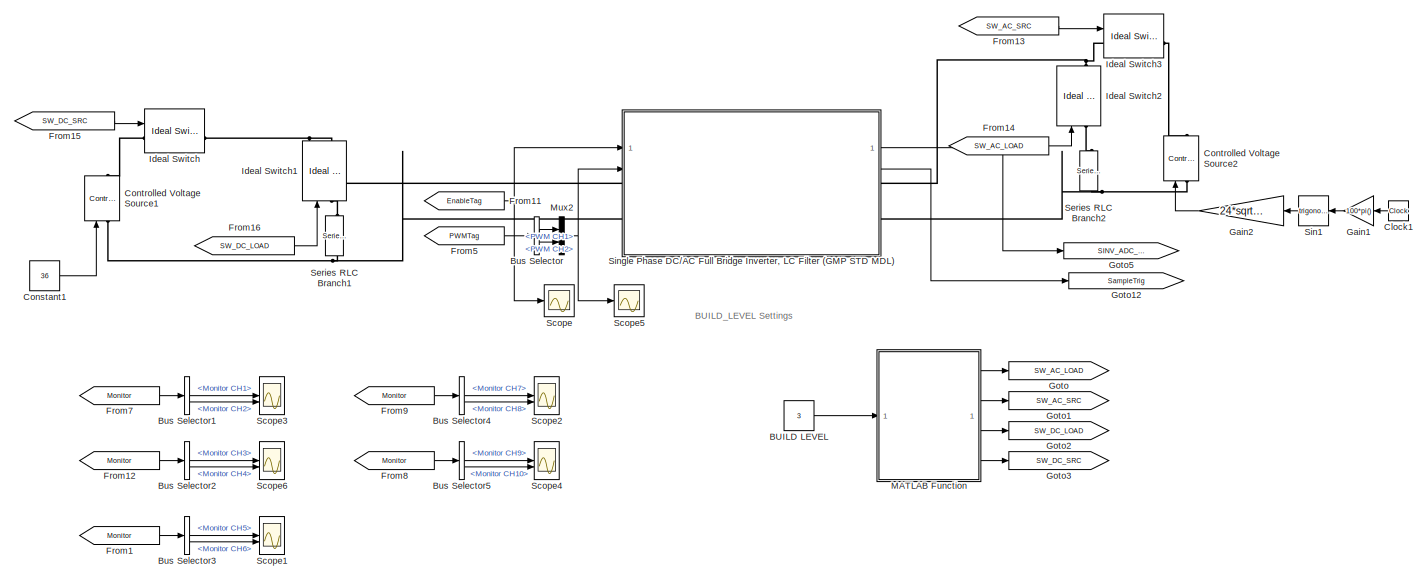
[diagram: root canvas - part 1/2, most of the canvas]
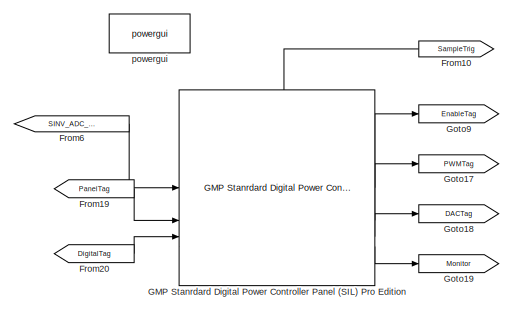
[diagram: root canvas - part 2/2, middle left region]
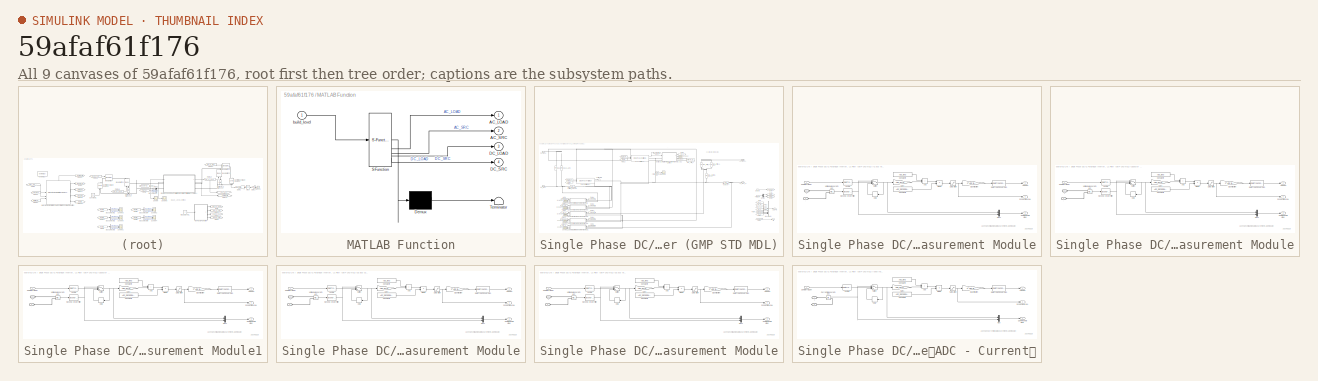
[diagram: thumbnail index - all 9 canvases of the model, root first then tree order]
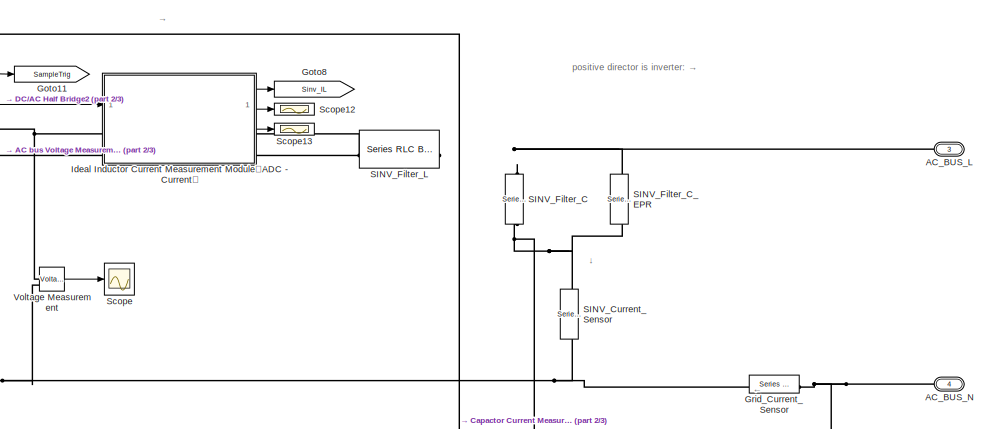
[diagram: Single Phase DC/AC Full Bridge Inverter, LC Filter (GMP STD MDL) - part 1/3, top right region]
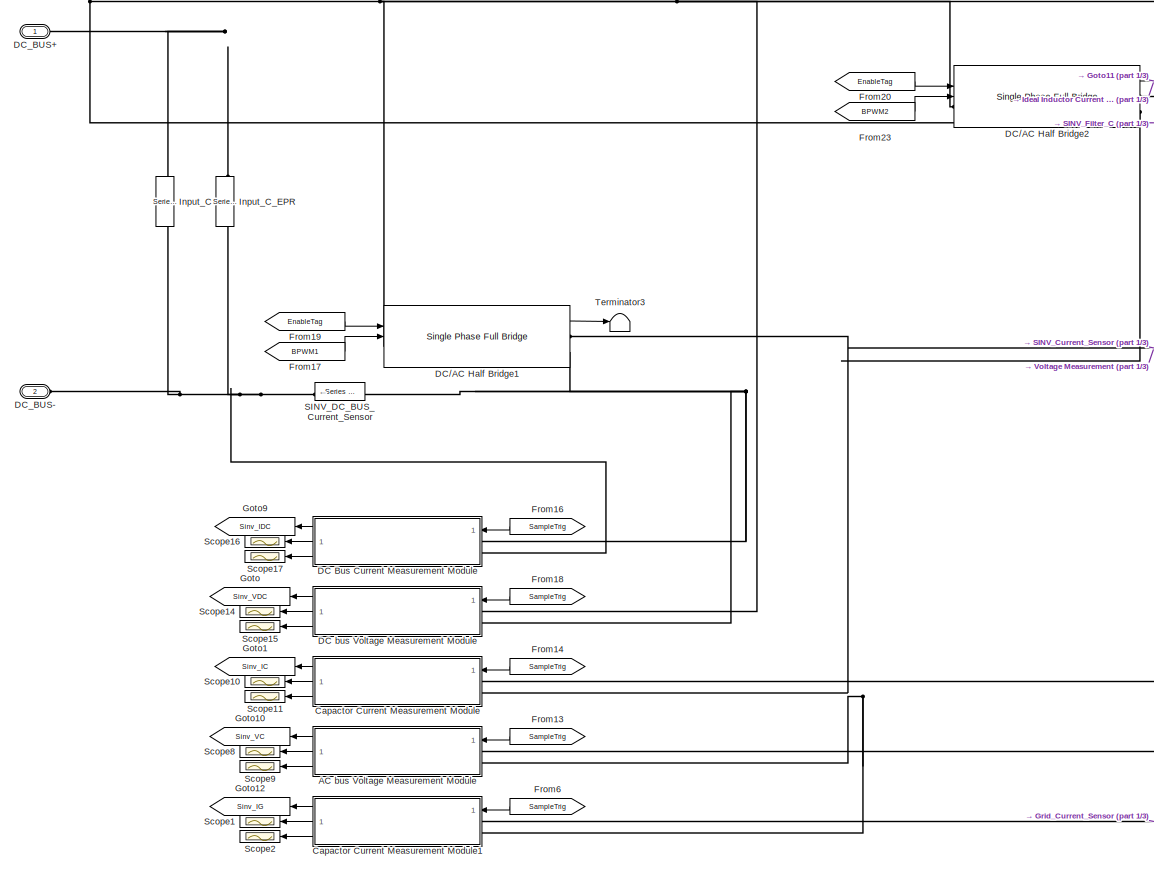
[diagram: Single Phase DC/AC Full Bridge Inverter, LC Filter (GMP STD MDL) - part 2/3, left side, full height]
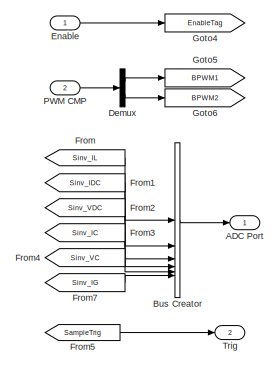
[diagram: Single Phase DC/AC Full Bridge Inverter, LC Filter (GMP STD MDL) - part 3/3, bottom right region]
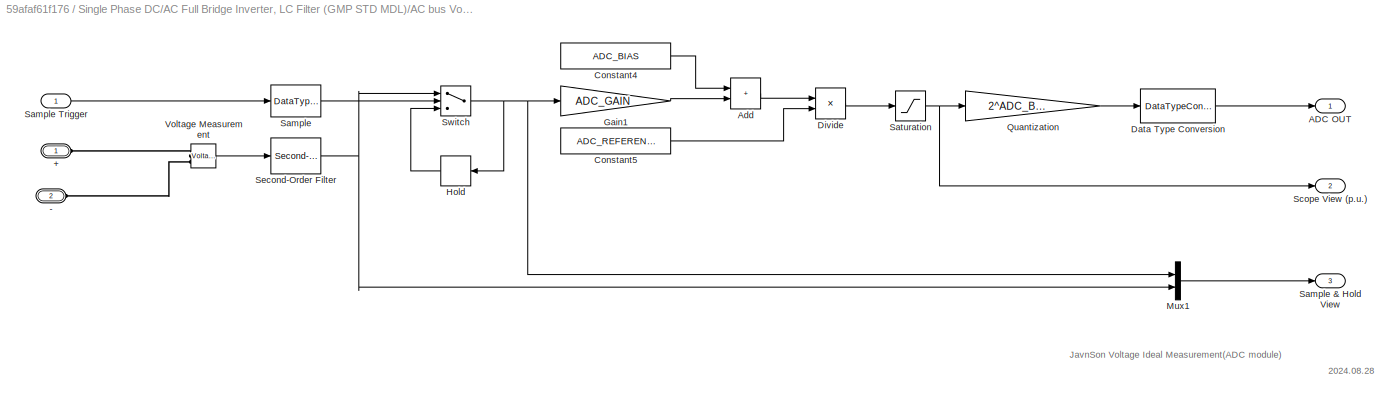
MODEL slx_59afaf61f176
KIND model
CONFIG AbsTol = auto
CONFIG EnableMultiTasking = off
CONFIG FixedStep = auto
CONFIG MaxStep = auto
CONFIG MinStep = auto
CONFIG RelTol = 1e-3
CONFIG SampleTimeConstraint = Unconstrained
CONFIG SolverName = VariableStepAuto
CONFIG StartTime = 0.0
CONFIG StopTime = 6
BLOCK [Constant] BUILD LEVEL
  Value = 3
BLOCK [BusSelector] Bus Selector
  OutputSignals = PWM CH1,PWM CH2
BLOCK [BusSelector] Bus Selector1
  OutputSignals = Monitor CH1,Monitor CH2
BLOCK [BusSelector] Bus Selector2
  OutputSignals = Monitor CH3,Monitor CH4
BLOCK [BusSelector] Bus Selector3
  OutputSignals = Monitor CH5,Monitor CH6
BLOCK [BusSelector] Bus Selector4
  OutputSignals = Monitor CH7,Monitor CH8
BLOCK [BusSelector] Bus Selector5
  OutputSignals = Monitor CH9,Monitor CH10
BLOCK [Clock] Clock1
  NameLocation = top
BLOCK [Constant] Constant1
  Value = 36
BLOCK [Reference] Controlled Voltage Source1  REF=spsControlledVoltageSourceLib/Controlled Voltage Source
  LibrarySourceBlock = sps_lib/Sources/Controlled Voltage Source
  SourceBlock = spsControlledVoltageSourceLib/Controlled Voltage Source
  SourceType = Controlled Voltage Source
BLOCK [Reference] Controlled Voltage Source2  REF=spsControlledVoltageSourceLib/Controlled Voltage Source
  LibrarySourceBlock = sps_lib/Sources/Controlled Voltage Source
  SourceBlock = spsControlledVoltageSourceLib/Controlled Voltage Source
  SourceType = Controlled Voltage Source
BLOCK [From] From1
  GotoTag = Monitor
BLOCK [From] From10
  GotoTag = SampleTrig
BLOCK [From] From11
  GotoTag = EnableTag
BLOCK [From] From12
  GotoTag = Monitor
BLOCK [From] From13
  GotoTag = SW_AC_SRC
BLOCK [From] From14
  GotoTag = SW_AC_LOAD
BLOCK [From] From15
  GotoTag = SW_DC_SRC
BLOCK [From] From16
  GotoTag = SW_DC_LOAD
BLOCK [From] From19
  GotoTag = PanelTag
BLOCK [From] From20
  GotoTag = DigitalTag
BLOCK [From] From5
  GotoTag = PWMTag
BLOCK [From] From6
  GotoTag = SINV_ADC_PORT
BLOCK [From] From7
  GotoTag = Monitor
BLOCK [From] From8
  GotoTag = Monitor
BLOCK [From] From9
  GotoTag = Monitor
BLOCK [Reference] GMP Stanrdard Digital Power Controller Panel (SIL) Pro Edition  REF=gmp_sil_core_pack/GMP Stanrdard Digital Power Controller Panel (SIL) Pro Edition
  SourceBlock = gmp_sil_core_pack/GMP Stanrdard Digital Power Controller Panel (SIL) Pro Edition
  SourceProductName = GMP SIL Core Utilities
  SourceType = GMP SIL Core for single Motor Controller (full edition)
BLOCK [Gain] Gain1
  Gain = 100*pi()
  NameLocation = top
BLOCK [Gain] Gain2
  Gain = 24*sqrt(2)
  NameLocation = top
BLOCK [Goto] Goto
  GotoTag = SW_AC_LOAD
BLOCK [Goto] Goto1
  GotoTag = SW_AC_SRC
BLOCK [Goto] Goto12
  GotoTag = SampleTrig
  NameLocation = top
BLOCK [Goto] Goto17
  GotoTag = PWMTag
  NameLocation = top
BLOCK [Goto] Goto18
  GotoTag = DACTag
  NameLocation = top
BLOCK [Goto] Goto19
  GotoTag = Monitor
  NameLocation = top
BLOCK [Goto] Goto2
  GotoTag = SW_DC_LOAD
BLOCK [Goto] Goto3
  GotoTag = SW_DC_SRC
BLOCK [Goto] Goto5
  GotoTag = SINV_ADC_PORT
BLOCK [Goto] Goto9
  GotoTag = EnableTag
  NameLocation = top
BLOCK [Reference] Ideal Switch  REF=spsIdealSwitchLib/Ideal Switch
  LibrarySourceBlock = sps_lib/Power Electronics/Ideal Switch
  SourceBlock = spsIdealSwitchLib/Ideal Switch
  SourceType = Ideal Switch
BLOCK [Reference] Ideal Switch1  REF=spsIdealSwitchLib/Ideal Switch
  LibrarySourceBlock = sps_lib/Power Electronics/Ideal Switch
  NameLocation = right
  SourceBlock = spsIdealSwitchLib/Ideal Switch
  SourceType = Ideal Switch
BLOCK [Reference] Ideal Switch2  REF=spsIdealSwitchLib/Ideal Switch
  LibrarySourceBlock = sps_lib/Power Electronics/Ideal Switch
  NameLocation = right
  SourceBlock = spsIdealSwitchLib/Ideal Switch
  SourceType = Ideal Switch
BLOCK [Reference] Ideal Switch3  REF=spsIdealSwitchLib/Ideal Switch
  LibrarySourceBlock = sps_lib/Power Electronics/Ideal Switch
  SourceBlock = spsIdealSwitchLib/Ideal Switch
  SourceType = Ideal Switch
BLOCK [SubSystem] MATLAB Function
  ErrorFcn = Stateflow.Translate.translate
  PermitHierarchicalResolution = ExplicitOnly
  SFBlockType = MATLAB Function
  TreatAsAtomicUnit = on
BLOCK [Demux] MATLAB Function/ Demux 
  Outputs = 1
BLOCK [S-Function] MATLAB Function/ SFunction 
  EnableBusSupport = off
  FunctionName = sf_sfun
  PortCounts = [1 5]
  SFcnIsStateOwnerBlock = off
  SFunctionDeploymentMode = off
  Tag = Stateflow S-Function 2
BLOCK [Terminator] MATLAB Function/ Terminator 
BLOCK [Outport] MATLAB Function/AC_LOAD
BLOCK [Outport] MATLAB Function/AC_SRC
  Port = 2
BLOCK [Outport] MATLAB Function/DC_LOAD
  Port = 3
BLOCK [Outport] MATLAB Function/DC_SRC
  Port = 4
BLOCK [Inport] MATLAB Function/build_level
BLOCK [Mux] Mux2
  DisplayOption = bar
  Inputs = 2
BLOCK [Scope] Scope
  Floating = off
  NumInputPorts = 1
  ScopeSpecificationString = Simulink.scopes.TimeScopeBlockCfg('CurrentConfiguration', extmgr.ConfigurationSet(extmgr.Configuration('Core','General UI',true),extmgr.Configuration('Core','Source UI',true),extmgr.Configuration('Sources','WiredSimulink',true,'DataLoggingVariableName','ScopeData3'),extmgr.Configuration('Visuals','Time Domain',true),extmgr.Configuration('Tools','Plot Navigation',true),extmgr.Configuration('Tools',...<+40ch>
BLOCK [Scope] Scope1
  Floating = off
  NumInputPorts = 2
  ScopeSpecificationString = Simulink.scopes.TimeScopeBlockCfg('CurrentConfiguration', extmgr.ConfigurationSet(extmgr.Configuration('Core','General UI',true),extmgr.Configuration('Core','Source UI',true),extmgr.Configuration('Sources','WiredSimulink',true,'DataLoggingVariableName','ScopeData1'),extmgr.Configuration('Visuals','Time Domain',true,'SerializedDisplays',{struct('MinYLimReal','-0.26132','MaxYLimReal','0.26039','YLab...<+1550ch>
BLOCK [Scope] Scope2
  Floating = off
  NumInputPorts = 2
  ScopeSpecificationString = Simulink.scopes.TimeScopeBlockCfg('CurrentConfiguration', extmgr.ConfigurationSet(extmgr.Configuration('Core','General UI',true),extmgr.Configuration('Core','Source UI',true),extmgr.Configuration('Sources','WiredSimulink',true,'DataLoggingVariableName','ScopeData1'),extmgr.Configuration('Visuals','Time Domain',true,'SerializedDisplays',{struct('MinYLimReal','-0.1','MaxYLimReal','0.9','YLabelReal',...<+1526ch>
BLOCK [Scope] Scope3
  Floating = off
  NumInputPorts = 2
  ScopeSpecificationString = Simulink.scopes.TimeScopeBlockCfg('CurrentConfiguration', extmgr.ConfigurationSet(extmgr.Configuration('Core','General UI',true),extmgr.Configuration('Core','Source UI',true),extmgr.Configuration('Sources','WiredSimulink',true,'DataLoggingVariableName','ScopeData1'),extmgr.Configuration('Visuals','Time Domain',true,'SerializedDisplays',{struct('MinYLimReal','-0.12505','MaxYLimReal','0.12541','YLab...<+1601ch>
BLOCK [Scope] Scope4
  Floating = off
  NumInputPorts = 2
  ScopeSpecificationString = Simulink.scopes.TimeScopeBlockCfg('CurrentConfiguration', extmgr.ConfigurationSet(extmgr.Configuration('Core','General UI',true),extmgr.Configuration('Core','Source UI',true),extmgr.Configuration('Sources','WiredSimulink',true,'DataLoggingVariableName','ScopeData2'),extmgr.Configuration('Visuals','Time Domain',true,'SerializedDisplays',{struct('MinYLimReal','-0.125','MaxYLimReal','1.125','YLabelRe...<+1562ch>
BLOCK [Scope] Scope5
  Floating = off
  NumInputPorts = 1
  ScopeSpecificationString = Simulink.scopes.TimeScopeBlockCfg('CurrentConfiguration', extmgr.ConfigurationSet(extmgr.Configuration('Core','General UI',true),extmgr.Configuration('Core','Source UI',true),extmgr.Configuration('Sources','WiredSimulink',true,'DataLoggingVariableName','ScopeData13'),extmgr.Configuration('Visuals','Time Domain',true,'SerializedDisplays',{struct('MinYLimReal','1810.3086','MaxYLimReal','2346.72197',...<+1587ch>
BLOCK [Scope] Scope6
  Floating = off
  NumInputPorts = 2
  ScopeSpecificationString = Simulink.scopes.TimeScopeBlockCfg('CurrentConfiguration', extmgr.ConfigurationSet(extmgr.Configuration('Core','General UI',true),extmgr.Configuration('Core','Source UI',true),extmgr.Configuration('Sources','WiredSimulink',true,'DataLoggingVariableName','ScopeData2'),extmgr.Configuration('Visuals','Time Domain',true,'SerializedDisplays',{struct('MinYLimReal','-0.00881','MaxYLimReal','0.07588','YLab...<+2273ch>
BLOCK [Reference] Series RLC Branch1  REF=spsSeriesRLCBranchLib/Series RLC Branch
  LibrarySourceBlock = sps_lib/Passives/Series RLC Branch
  NameLocation = left
  SourceBlock = spsSeriesRLCBranchLib/Series RLC Branch
  SourceType = Series RLC Branch
BLOCK [Reference] Series RLC Branch2  REF=spsSeriesRLCBranchLib/Series RLC Branch
  LibrarySourceBlock = sps_lib/Passives/Series RLC Branch
  NameLocation = left
  SourceBlock = spsSeriesRLCBranchLib/Series RLC Branch
  SourceType = Series RLC Branch
BLOCK [Trigonometry] Sin1
  NameLocation = top
BLOCK [SubSystem] Single Phase DC//AC Full Bridge Inverter, LC Filter (GMP STD MDL)
  PortSchema = {"entries":[{"content":{"sides":[{"content":{"connectorIds":["LConn1","LConn2","In1","In2"]},"type":"ConnectorPlacement.EquallySpacedRectSide","uuid":"0e3e6e75-5e1a-455b-8a22-c69d0a4261ca"},{"content":{"connectorIds":["RConn1","RConn2","Out1","Out2"],"side":"RIGHT"},"type":"ConnectorPlacement.EquallySpacedRectSide","uuid":"20326781-9238-4fea-80fd-ba96906d5d3f"},{"content":{"side":"TOP"},"type":"Co...<+271ch>
BLOCK [SubSystem] Single Phase DC//AC Full Bridge Inverter, LC Filter (GMP STD MDL)/AC bus Voltage Measurement Module
  AncestorBlock = peripheral_utilities/Ideal Voltage Measurement with filter Module(ADC - Voltage)
BLOCK [PMIOPort] Single Phase DC//AC Full Bridge Inverter, LC Filter (GMP STD MDL)/AC bus Voltage Measurement Module/+
  Side = Left
BLOCK [PMIOPort] Single Phase DC//AC Full Bridge Inverter, LC Filter (GMP STD MDL)/AC bus Voltage Measurement Module/-
  Port = 2
  Side = Left
BLOCK [Outport] Single Phase DC//AC Full Bridge Inverter, LC Filter (GMP STD MDL)/AC bus Voltage Measurement Module/ADC OUT
BLOCK [Sum] Single Phase DC//AC Full Bridge Inverter, LC Filter (GMP STD MDL)/AC bus Voltage Measurement Module/Add
  IconShape = rectangular
BLOCK [Constant] Single Phase DC//AC Full Bridge Inverter, LC Filter (GMP STD MDL)/AC bus Voltage Measurement Module/Constant4
  Value = ADC_BIAS
BLOCK [Constant] Single Phase DC//AC Full Bridge Inverter, LC Filter (GMP STD MDL)/AC bus Voltage Measurement Module/Constant5
  Value = ADC_REFERENCE
BLOCK [DataTypeConversion] Single Phase DC//AC Full Bridge Inverter, LC Filter (GMP STD MDL)/AC bus Voltage Measurement Module/Data Type Conversion
  ConvertRealWorld = Stored Integer (SI)
  OutDataTypeStr = uint32
  RndMeth = Floor
  SaturateOnIntegerOverflow = off
BLOCK [Product] Single Phase DC//AC Full Bridge Inverter, LC Filter (GMP STD MDL)/AC bus Voltage Measurement Module/Divide
  Inputs = */
BLOCK [Gain] Single Phase DC//AC Full Bridge Inverter, LC Filter (GMP STD MDL)/AC bus Voltage Measurement Module/Gain1
  Gain = ADC_GAIN
BLOCK [Memory] Single Phase DC//AC Full Bridge Inverter, LC Filter (GMP STD MDL)/AC bus Voltage Measurement Module/Hold
  InitialCondition = ADC_INIT
  LinearizeAsDelay = on
  NameLocation = top
BLOCK [Mux] Single Phase DC//AC Full Bridge Inverter, LC Filter (GMP STD MDL)/AC bus Voltage Measurement Module/Mux1
  DisplayOption = bar
  Inputs = 2
BLOCK [Gain] Single Phase DC//AC Full Bridge Inverter, LC Filter (GMP STD MDL)/AC bus Voltage Measurement Module/Quantization
  Gain = 2^ADC_BIT
BLOCK [DataTypeConversion] Single Phase DC//AC Full Bridge Inverter, LC Filter (GMP STD MDL)/AC bus Voltage Measurement Module/Sample
  OutDataTypeStr = boolean
  RndMeth = Floor
  SaturateOnIntegerOverflow = off
BLOCK [Outport] Single Phase DC//AC Full Bridge Inverter, LC Filter (GMP STD MDL)/AC bus Voltage Measurement Module/Sample & Hold View
  Port = 3
BLOCK [Inport] Single Phase DC//AC Full Bridge Inverter, LC Filter (GMP STD MDL)/AC bus Voltage Measurement Module/Sample Trigger
BLOCK [Saturate] Single Phase DC//AC Full Bridge Inverter, LC Filter (GMP STD MDL)/AC bus Voltage Measurement Module/Saturation
  LowerLimit = 0
  UpperLimit = 1
BLOCK [Outport] Single Phase DC//AC Full Bridge Inverter, LC Filter (GMP STD MDL)/AC bus Voltage Measurement Module/Scope View (p.u.)
  Port = 2
BLOCK [Reference] Single Phase DC//AC Full Bridge Inverter, LC Filter (GMP STD MDL)/AC bus Voltage Measurement Module/Second-Order Filter  REF=spsSecondOrderFilterLib/Second-Order
Filter
  SourceBlock = spsSecondOrderFilterLib/Second-Order\nFilter
  SourceType = Second-Order Filter
BLOCK [Switch] Single Phase DC//AC Full Bridge Inverter, LC Filter (GMP STD MDL)/AC bus Voltage Measurement Module/Switch
  Threshold = 0.5
BLOCK [Reference] Single Phase DC//AC Full Bridge Inverter, LC Filter (GMP STD MDL)/AC bus Voltage Measurement Module/Voltage Measurement  REF=spsVoltageMeasurementLib/Voltage Measurement
  SourceBlock = spsVoltageMeasurementLib/Voltage Measurement
  SourceType = Voltage Measurement
  UserDataPersistent = on
BLOCK [PMIOPort] Single Phase DC//AC Full Bridge Inverter, LC Filter (GMP STD MDL)/AC_BUS_L
  NameLocation = top
  Port = 3
  Side = Right
BLOCK [PMIOPort] Single Phase DC//AC Full Bridge Inverter, LC Filter (GMP STD MDL)/AC_BUS_N
  NameLocation = top
  Port = 4
  Side = Right
BLOCK [Outport] Single Phase DC//AC Full Bridge Inverter, LC Filter (GMP STD MDL)/ADC Port
BLOCK [BusCreator] Single Phase DC//AC Full Bridge Inverter, LC Filter (GMP STD MDL)/Bus Creator
  DisplayOption = bar
  InheritFromInputs = on
  Inputs = 6
BLOCK [SubSystem] Single Phase DC//AC Full Bridge Inverter, LC Filter (GMP STD MDL)/Capactor Current Measurement Module
  AncestorBlock = peripheral_utilities/Ideal Voltage Measurement with filter Module(ADC - Voltage)
BLOCK [PMIOPort] Single Phase DC//AC Full Bridge Inverter, LC Filter (GMP STD MDL)/Capactor Current Measurement Module/+
  Side = Left
BLOCK [PMIOPort] Single Phase DC//AC Full Bridge Inverter, LC Filter (GMP STD MDL)/Capactor Current Measurement Module/-
  Port = 2
  Side = Left
BLOCK [Outport] Single Phase DC//AC Full Bridge Inverter, LC Filter (GMP STD MDL)/Capactor Current Measurement Module/ADC OUT
BLOCK [Sum] Single Phase DC//AC Full Bridge Inverter, LC Filter (GMP STD MDL)/Capactor Current Measurement Module/Add
  IconShape = rectangular
BLOCK [Constant] Single Phase DC//AC Full Bridge Inverter, LC Filter (GMP STD MDL)/Capactor Current Measurement Module/Constant4
  Value = ADC_BIAS
BLOCK [Constant] Single Phase DC//AC Full Bridge Inverter, LC Filter (GMP STD MDL)/Capactor Current Measurement Module/Constant5
  Value = ADC_REFERENCE
BLOCK [DataTypeConversion] Single Phase DC//AC Full Bridge Inverter, LC Filter (GMP STD MDL)/Capactor Current Measurement Module/Data Type Conversion
  ConvertRealWorld = Stored Integer (SI)
  OutDataTypeStr = uint32
  RndMeth = Floor
  SaturateOnIntegerOverflow = off
BLOCK [Product] Single Phase DC//AC Full Bridge Inverter, LC Filter (GMP STD MDL)/Capactor Current Measurement Module/Divide
  Inputs = */
BLOCK [Gain] Single Phase DC//AC Full Bridge Inverter, LC Filter (GMP STD MDL)/Capactor Current Measurement Module/Gain1
  Gain = ADC_GAIN
BLOCK [Memory] Single Phase DC//AC Full Bridge Inverter, LC Filter (GMP STD MDL)/Capactor Current Measurement Module/Hold
  InitialCondition = ADC_INIT
  LinearizeAsDelay = on
  NameLocation = top
BLOCK [Mux] Single Phase DC//AC Full Bridge Inverter, LC Filter (GMP STD MDL)/Capactor Current Measurement Module/Mux1
  DisplayOption = bar
  Inputs = 2
BLOCK [Gain] Single Phase DC//AC Full Bridge Inverter, LC Filter (GMP STD MDL)/Capactor Current Measurement Module/Quantization
  Gain = 2^ADC_BIT
BLOCK [DataTypeConversion] Single Phase DC//AC Full Bridge Inverter, LC Filter (GMP STD MDL)/Capactor Current Measurement Module/Sample
  OutDataTypeStr = boolean
  RndMeth = Floor
  SaturateOnIntegerOverflow = off
BLOCK [Outport] Single Phase DC//AC Full Bridge Inverter, LC Filter (GMP STD MDL)/Capactor Current Measurement Module/Sample & Hold View
  Port = 3
BLOCK [Inport] Single Phase DC//AC Full Bridge Inverter, LC Filter (GMP STD MDL)/Capactor Current Measurement Module/Sample Trigger
BLOCK [Saturate] Single Phase DC//AC Full Bridge Inverter, LC Filter (GMP STD MDL)/Capactor Current Measurement Module/Saturation
  LowerLimit = 0
  UpperLimit = 1
BLOCK [Outport] Single Phase DC//AC Full Bridge Inverter, LC Filter (GMP STD MDL)/Capactor Current Measurement Module/Scope View (p.u.)
  Port = 2
BLOCK [Reference] Single Phase DC//AC Full Bridge Inverter, LC Filter (GMP STD MDL)/Capactor Current Measurement Module/Second-Order Filter  REF=spsSecondOrderFilterLib/Second-Order
Filter
  SourceBlock = spsSecondOrderFilterLib/Second-Order\nFilter
  SourceType = Second-Order Filter
BLOCK [Switch] Single Phase DC//AC Full Bridge Inverter, LC Filter (GMP STD MDL)/Capactor Current Measurement Module/Switch
  Threshold = 0.5
BLOCK [Reference] Single Phase DC//AC Full Bridge Inverter, LC Filter (GMP STD MDL)/Capactor Current Measurement Module/Voltage Measurement  REF=spsVoltageMeasurementLib/Voltage Measurement
  SourceBlock = spsVoltageMeasurementLib/Voltage Measurement
  SourceType = Voltage Measurement
  UserDataPersistent = on
BLOCK [SubSystem] Single Phase DC//AC Full Bridge Inverter, LC Filter (GMP STD MDL)/Capactor Current Measurement Module1
  AncestorBlock = peripheral_utilities/Ideal Voltage Measurement with filter Module(ADC - Voltage)
BLOCK [PMIOPort] Single Phase DC//AC Full Bridge Inverter, LC Filter (GMP STD MDL)/Capactor Current Measurement Module1/+
  Side = Left
BLOCK [PMIOPort] Single Phase DC//AC Full Bridge Inverter, LC Filter (GMP STD MDL)/Capactor Current Measurement Module1/-
  Port = 2
  Side = Left
BLOCK [Outport] Single Phase DC//AC Full Bridge Inverter, LC Filter (GMP STD MDL)/Capactor Current Measurement Module1/ADC OUT
BLOCK [Sum] Single Phase DC//AC Full Bridge Inverter, LC Filter (GMP STD MDL)/Capactor Current Measurement Module1/Add
  IconShape = rectangular
BLOCK [Constant] Single Phase DC//AC Full Bridge Inverter, LC Filter (GMP STD MDL)/Capactor Current Measurement Module1/Constant4
  Value = ADC_BIAS
BLOCK [Constant] Single Phase DC//AC Full Bridge Inverter, LC Filter (GMP STD MDL)/Capactor Current Measurement Module1/Constant5
  Value = ADC_REFERENCE
BLOCK [DataTypeConversion] Single Phase DC//AC Full Bridge Inverter, LC Filter (GMP STD MDL)/Capactor Current Measurement Module1/Data Type Conversion
  ConvertRealWorld = Stored Integer (SI)
  OutDataTypeStr = uint32
  RndMeth = Floor
  SaturateOnIntegerOverflow = off
BLOCK [Product] Single Phase DC//AC Full Bridge Inverter, LC Filter (GMP STD MDL)/Capactor Current Measurement Module1/Divide
  Inputs = */
BLOCK [Gain] Single Phase DC//AC Full Bridge Inverter, LC Filter (GMP STD MDL)/Capactor Current Measurement Module1/Gain1
  Gain = ADC_GAIN
BLOCK [Memory] Single Phase DC//AC Full Bridge Inverter, LC Filter (GMP STD MDL)/Capactor Current Measurement Module1/Hold
  InitialCondition = ADC_INIT
  LinearizeAsDelay = on
  NameLocation = top
BLOCK [Mux] Single Phase DC//AC Full Bridge Inverter, LC Filter (GMP STD MDL)/Capactor Current Measurement Module1/Mux1
  DisplayOption = bar
  Inputs = 2
BLOCK [Gain] Single Phase DC//AC Full Bridge Inverter, LC Filter (GMP STD MDL)/Capactor Current Measurement Module1/Quantization
  Gain = 2^ADC_BIT
BLOCK [DataTypeConversion] Single Phase DC//AC Full Bridge Inverter, LC Filter (GMP STD MDL)/Capactor Current Measurement Module1/Sample
  OutDataTypeStr = boolean
  RndMeth = Floor
  SaturateOnIntegerOverflow = off
BLOCK [Outport] Single Phase DC//AC Full Bridge Inverter, LC Filter (GMP STD MDL)/Capactor Current Measurement Module1/Sample & Hold View
  Port = 3
BLOCK [Inport] Single Phase DC//AC Full Bridge Inverter, LC Filter (GMP STD MDL)/Capactor Current Measurement Module1/Sample Trigger
BLOCK [Saturate] Single Phase DC//AC Full Bridge Inverter, LC Filter (GMP STD MDL)/Capactor Current Measurement Module1/Saturation
  LowerLimit = 0
  UpperLimit = 1
BLOCK [Outport] Single Phase DC//AC Full Bridge Inverter, LC Filter (GMP STD MDL)/Capactor Current Measurement Module1/Scope View (p.u.)
  Port = 2
BLOCK [Reference] Single Phase DC//AC Full Bridge Inverter, LC Filter (GMP STD MDL)/Capactor Current Measurement Module1/Second-Order Filter  REF=spsSecondOrderFilterLib/Second-Order
Filter
  SourceBlock = spsSecondOrderFilterLib/Second-Order\nFilter
  SourceType = Second-Order Filter
BLOCK [Switch] Single Phase DC//AC Full Bridge Inverter, LC Filter (GMP STD MDL)/Capactor Current Measurement Module1/Switch
  Threshold = 0.5
BLOCK [Reference] Single Phase DC//AC Full Bridge Inverter, LC Filter (GMP STD MDL)/Capactor Current Measurement Module1/Voltage Measurement  REF=spsVoltageMeasurementLib/Voltage Measurement
  SourceBlock = spsVoltageMeasurementLib/Voltage Measurement
  SourceType = Voltage Measurement
  UserDataPersistent = on
BLOCK [SubSystem] Single Phase DC//AC Full Bridge Inverter, LC Filter (GMP STD MDL)/DC Bus Current Measurement Module
  AncestorBlock = peripheral_utilities/Ideal Voltage Measurement with filter Module(ADC - Voltage)
BLOCK [PMIOPort] Single Phase DC//AC Full Bridge Inverter, LC Filter (GMP STD MDL)/DC Bus Current Measurement Module/+
  Side = Left
BLOCK [PMIOPort] Single Phase DC//AC Full Bridge Inverter, LC Filter (GMP STD MDL)/DC Bus Current Measurement Module/-
  Port = 2
  Side = Left
BLOCK [Outport] Single Phase DC//AC Full Bridge Inverter, LC Filter (GMP STD MDL)/DC Bus Current Measurement Module/ADC OUT
BLOCK [Sum] Single Phase DC//AC Full Bridge Inverter, LC Filter (GMP STD MDL)/DC Bus Current Measurement Module/Add
  IconShape = rectangular
BLOCK [Constant] Single Phase DC//AC Full Bridge Inverter, LC Filter (GMP STD MDL)/DC Bus Current Measurement Module/Constant4
  Value = ADC_BIAS
BLOCK [Constant] Single Phase DC//AC Full Bridge Inverter, LC Filter (GMP STD MDL)/DC Bus Current Measurement Module/Constant5
  Value = ADC_REFERENCE
BLOCK [DataTypeConversion] Single Phase DC//AC Full Bridge Inverter, LC Filter (GMP STD MDL)/DC Bus Current Measurement Module/Data Type Conversion
  ConvertRealWorld = Stored Integer (SI)
  OutDataTypeStr = uint32
  RndMeth = Floor
  SaturateOnIntegerOverflow = off
BLOCK [Product] Single Phase DC//AC Full Bridge Inverter, LC Filter (GMP STD MDL)/DC Bus Current Measurement Module/Divide
  Inputs = */
BLOCK [Gain] Single Phase DC//AC Full Bridge Inverter, LC Filter (GMP STD MDL)/DC Bus Current Measurement Module/Gain1
  Gain = ADC_GAIN
BLOCK [Memory] Single Phase DC//AC Full Bridge Inverter, LC Filter (GMP STD MDL)/DC Bus Current Measurement Module/Hold
  InitialCondition = ADC_INIT
  LinearizeAsDelay = on
  NameLocation = top
BLOCK [Mux] Single Phase DC//AC Full Bridge Inverter, LC Filter (GMP STD MDL)/DC Bus Current Measurement Module/Mux1
  DisplayOption = bar
  Inputs = 2
BLOCK [Gain] Single Phase DC//AC Full Bridge Inverter, LC Filter (GMP STD MDL)/DC Bus Current Measurement Module/Quantization
  Gain = 2^ADC_BIT
BLOCK [DataTypeConversion] Single Phase DC//AC Full Bridge Inverter, LC Filter (GMP STD MDL)/DC Bus Current Measurement Module/Sample
  OutDataTypeStr = boolean
  RndMeth = Floor
  SaturateOnIntegerOverflow = off
BLOCK [Outport] Single Phase DC//AC Full Bridge Inverter, LC Filter (GMP STD MDL)/DC Bus Current Measurement Module/Sample & Hold View
  Port = 3
BLOCK [Inport] Single Phase DC//AC Full Bridge Inverter, LC Filter (GMP STD MDL)/DC Bus Current Measurement Module/Sample Trigger
BLOCK [Saturate] Single Phase DC//AC Full Bridge Inverter, LC Filter (GMP STD MDL)/DC Bus Current Measurement Module/Saturation
  LowerLimit = 0
  UpperLimit = 1
BLOCK [Outport] Single Phase DC//AC Full Bridge Inverter, LC Filter (GMP STD MDL)/DC Bus Current Measurement Module/Scope View (p.u.)
  Port = 2
BLOCK [Reference] Single Phase DC//AC Full Bridge Inverter, LC Filter (GMP STD MDL)/DC Bus Current Measurement Module/Second-Order Filter  REF=spsSecondOrderFilterLib/Second-Order
Filter
  SourceBlock = spsSecondOrderFilterLib/Second-Order\nFilter
  SourceType = Second-Order Filter
BLOCK [Switch] Single Phase DC//AC Full Bridge Inverter, LC Filter (GMP STD MDL)/DC Bus Current Measurement Module/Switch
  Threshold = 0.5
BLOCK [Reference] Single Phase DC//AC Full Bridge Inverter, LC Filter (GMP STD MDL)/DC Bus Current Measurement Module/Voltage Measurement  REF=spsVoltageMeasurementLib/Voltage Measurement
  SourceBlock = spsVoltageMeasurementLib/Voltage Measurement
  SourceType = Voltage Measurement
  UserDataPersistent = on
BLOCK [SubSystem] Single Phase DC//AC Full Bridge Inverter, LC Filter (GMP STD MDL)/DC bus Voltage Measurement Module
  AncestorBlock = peripheral_utilities/Ideal Voltage Measurement with filter Module(ADC - Voltage)
BLOCK [PMIOPort] Single Phase DC//AC Full Bridge Inverter, LC Filter (GMP STD MDL)/DC bus Voltage Measurement Module/+
  Side = Left
BLOCK [PMIOPort] Single Phase DC//AC Full Bridge Inverter, LC Filter (GMP STD MDL)/DC bus Voltage Measurement Module/-
  Port = 2
  Side = Left
BLOCK [Outport] Single Phase DC//AC Full Bridge Inverter, LC Filter (GMP STD MDL)/DC bus Voltage Measurement Module/ADC OUT
BLOCK [Sum] Single Phase DC//AC Full Bridge Inverter, LC Filter (GMP STD MDL)/DC bus Voltage Measurement Module/Add
  IconShape = rectangular
BLOCK [Constant] Single Phase DC//AC Full Bridge Inverter, LC Filter (GMP STD MDL)/DC bus Voltage Measurement Module/Constant4
  Value = ADC_BIAS
BLOCK [Constant] Single Phase DC//AC Full Bridge Inverter, LC Filter (GMP STD MDL)/DC bus Voltage Measurement Module/Constant5
  Value = ADC_REFERENCE
BLOCK [DataTypeConversion] Single Phase DC//AC Full Bridge Inverter, LC Filter (GMP STD MDL)/DC bus Voltage Measurement Module/Data Type Conversion
  ConvertRealWorld = Stored Integer (SI)
  OutDataTypeStr = uint32
  RndMeth = Floor
  SaturateOnIntegerOverflow = off
BLOCK [Product] Single Phase DC//AC Full Bridge Inverter, LC Filter (GMP STD MDL)/DC bus Voltage Measurement Module/Divide
  Inputs = */
BLOCK [Gain] Single Phase DC//AC Full Bridge Inverter, LC Filter (GMP STD MDL)/DC bus Voltage Measurement Module/Gain1
  Gain = ADC_GAIN
BLOCK [Memory] Single Phase DC//AC Full Bridge Inverter, LC Filter (GMP STD MDL)/DC bus Voltage Measurement Module/Hold
  InitialCondition = ADC_INIT
  LinearizeAsDelay = on
  NameLocation = top
BLOCK [Mux] Single Phase DC//AC Full Bridge Inverter, LC Filter (GMP STD MDL)/DC bus Voltage Measurement Module/Mux1
  DisplayOption = bar
  Inputs = 2
BLOCK [Gain] Single Phase DC//AC Full Bridge Inverter, LC Filter (GMP STD MDL)/DC bus Voltage Measurement Module/Quantization
  Gain = 2^ADC_BIT
BLOCK [DataTypeConversion] Single Phase DC//AC Full Bridge Inverter, LC Filter (GMP STD MDL)/DC bus Voltage Measurement Module/Sample
  OutDataTypeStr = boolean
  RndMeth = Floor
  SaturateOnIntegerOverflow = off
BLOCK [Outport] Single Phase DC//AC Full Bridge Inverter, LC Filter (GMP STD MDL)/DC bus Voltage Measurement Module/Sample & Hold View
  Port = 3
BLOCK [Inport] Single Phase DC//AC Full Bridge Inverter, LC Filter (GMP STD MDL)/DC bus Voltage Measurement Module/Sample Trigger
BLOCK [Saturate] Single Phase DC//AC Full Bridge Inverter, LC Filter (GMP STD MDL)/DC bus Voltage Measurement Module/Saturation
  LowerLimit = 0
  UpperLimit = 1
BLOCK [Outport] Single Phase DC//AC Full Bridge Inverter, LC Filter (GMP STD MDL)/DC bus Voltage Measurement Module/Scope View (p.u.)
  Port = 2
BLOCK [Reference] Single Phase DC//AC Full Bridge Inverter, LC Filter (GMP STD MDL)/DC bus Voltage Measurement Module/Second-Order Filter  REF=spsSecondOrderFilterLib/Second-Order
Filter
  SourceBlock = spsSecondOrderFilterLib/Second-Order\nFilter
  SourceType = Second-Order Filter
BLOCK [Switch] Single Phase DC//AC Full Bridge Inverter, LC Filter (GMP STD MDL)/DC bus Voltage Measurement Module/Switch
  Threshold = 0.5
BLOCK [Reference] Single Phase DC//AC Full Bridge Inverter, LC Filter (GMP STD MDL)/DC bus Voltage Measurement Module/Voltage Measurement  REF=spsVoltageMeasurementLib/Voltage Measurement
  SourceBlock = spsVoltageMeasurementLib/Voltage Measurement
  SourceType = Voltage Measurement
  UserDataPersistent = on
BLOCK [Reference] Single Phase DC//AC Full Bridge Inverter, LC Filter (GMP STD MDL)/DC//AC Half Bridge1  REF=peripheral_utilities/Single Phase Full Bridge
  SourceBlock = peripheral_utilities/Single Phase Full Bridge
BLOCK [Reference] Single Phase DC//AC Full Bridge Inverter, LC Filter (GMP STD MDL)/DC//AC Half Bridge2  REF=peripheral_utilities/Single Phase Full Bridge
  SourceBlock = peripheral_utilities/Single Phase Full Bridge
BLOCK [PMIOPort] Single Phase DC//AC Full Bridge Inverter, LC Filter (GMP STD MDL)/DC_BUS+
  Side = Left
BLOCK [PMIOPort] Single Phase DC//AC Full Bridge Inverter, LC Filter (GMP STD MDL)/DC_BUS-
  Port = 2
  Side = Left
BLOCK [Demux] Single Phase DC//AC Full Bridge Inverter, LC Filter (GMP STD MDL)/Demux
  Outputs = 2
BLOCK [Inport] Single Phase DC//AC Full Bridge Inverter, LC Filter (GMP STD MDL)/Enable
BLOCK [From] Single Phase DC//AC Full Bridge Inverter, LC Filter (GMP STD MDL)/From
  GotoTag = Sinv_IL
BLOCK [From] Single Phase DC//AC Full Bridge Inverter, LC Filter (GMP STD MDL)/From1
  GotoTag = Sinv_IDC
  NameLocation = top
BLOCK [From] Single Phase DC//AC Full Bridge Inverter, LC Filter (GMP STD MDL)/From13
  GotoTag = SampleTrig
  NameLocation = top
BLOCK [From] Single Phase DC//AC Full Bridge Inverter, LC Filter (GMP STD MDL)/From14
  GotoTag = SampleTrig
  NameLocation = top
BLOCK [From] Single Phase DC//AC Full Bridge Inverter, LC Filter (GMP STD MDL)/From16
  GotoTag = SampleTrig
  NameLocation = top
BLOCK [From] Single Phase DC//AC Full Bridge Inverter, LC Filter (GMP STD MDL)/From17
  GotoTag = BPWM1
  NameLocation = top
BLOCK [From] Single Phase DC//AC Full Bridge Inverter, LC Filter (GMP STD MDL)/From18
  GotoTag = SampleTrig
  NameLocation = top
BLOCK [From] Single Phase DC//AC Full Bridge Inverter, LC Filter (GMP STD MDL)/From19
  GotoTag = EnableTag
  NameLocation = top
BLOCK [From] Single Phase DC//AC Full Bridge Inverter, LC Filter (GMP STD MDL)/From2
  GotoTag = Sinv_VDC
  NameLocation = top
BLOCK [From] Single Phase DC//AC Full Bridge Inverter, LC Filter (GMP STD MDL)/From20
  GotoTag = EnableTag
  NameLocation = top
BLOCK [From] Single Phase DC//AC Full Bridge Inverter, LC Filter (GMP STD MDL)/From23
  GotoTag = BPWM2
  NameLocation = top
BLOCK [From] Single Phase DC//AC Full Bridge Inverter, LC Filter (GMP STD MDL)/From3
  GotoTag = Sinv_IC
  NameLocation = top
BLOCK [From] Single Phase DC//AC Full Bridge Inverter, LC Filter (GMP STD MDL)/From4
  GotoTag = Sinv_VC
  NameLocation = top
BLOCK [From] Single Phase DC//AC Full Bridge Inverter, LC Filter (GMP STD MDL)/From5
  GotoTag = SampleTrig
BLOCK [From] Single Phase DC//AC Full Bridge Inverter, LC Filter (GMP STD MDL)/From6
  GotoTag = SampleTrig
  NameLocation = top
BLOCK [From] Single Phase DC//AC Full Bridge Inverter, LC Filter (GMP STD MDL)/From7
  GotoTag = Sinv_IG
  NameLocation = top
BLOCK [Goto] Single Phase DC//AC Full Bridge Inverter, LC Filter (GMP STD MDL)/Goto
  GotoTag = Sinv_VDC
  NameLocation = top
BLOCK [Goto] Single Phase DC//AC Full Bridge Inverter, LC Filter (GMP STD MDL)/Goto1
  GotoTag = Sinv_IC
  NameLocation = top
BLOCK [Goto] Single Phase DC//AC Full Bridge Inverter, LC Filter (GMP STD MDL)/Goto10
  GotoTag = Sinv_VC
  NameLocation = top
BLOCK [Goto] Single Phase DC//AC Full Bridge Inverter, LC Filter (GMP STD MDL)/Goto11
  GotoTag = SampleTrig
BLOCK [Goto] Single Phase DC//AC Full Bridge Inverter, LC Filter (GMP STD MDL)/Goto12
  GotoTag = Sinv_IG
  NameLocation = top
BLOCK [Goto] Single Phase DC//AC Full Bridge Inverter, LC Filter (GMP STD MDL)/Goto4
  GotoTag = EnableTag
BLOCK [Goto] Single Phase DC//AC Full Bridge Inverter, LC Filter (GMP STD MDL)/Goto5
  GotoTag = BPWM1
BLOCK [Goto] Single Phase DC//AC Full Bridge Inverter, LC Filter (GMP STD MDL)/Goto6
  GotoTag = BPWM2
BLOCK [Goto] Single Phase DC//AC Full Bridge Inverter, LC Filter (GMP STD MDL)/Goto8
  GotoTag = Sinv_IL
BLOCK [Goto] Single Phase DC//AC Full Bridge Inverter, LC Filter (GMP STD MDL)/Goto9
  GotoTag = Sinv_IDC
  NameLocation = top
BLOCK [Reference] Single Phase DC//AC Full Bridge Inverter, LC Filter (GMP STD MDL)/Grid_Current_Sensor  REF=spsSeriesRLCBranchLib/Series RLC Branch
  LibrarySourceBlock = sps_lib/Passives/Series RLC Branch
  SourceBlock = spsSeriesRLCBranchLib/Series RLC Branch
  SourceType = Series RLC Branch
BLOCK [SubSystem] Single Phase DC//AC Full Bridge Inverter, LC Filter (GMP STD MDL)/Ideal Inductor Current Measurement Module（ADC - Current）
  AncestorBlock = peripheral_utilities/Ideal Current Measurement Module（ADC - Current）
BLOCK [PMIOPort] Single Phase DC//AC Full Bridge Inverter, LC Filter (GMP STD MDL)/Ideal Inductor Current Measurement Module（ADC - Current）/+
  Side = Left
BLOCK [PMIOPort] Single Phase DC//AC Full Bridge Inverter, LC Filter (GMP STD MDL)/Ideal Inductor Current Measurement Module（ADC - Current）/-
  NameLocation = top
  Port = 2
  Side = Right
BLOCK [Outport] Single Phase DC//AC Full Bridge Inverter, LC Filter (GMP STD MDL)/Ideal Inductor Current Measurement Module（ADC - Current）/ADC OUT
BLOCK [Sum] Single Phase DC//AC Full Bridge Inverter, LC Filter (GMP STD MDL)/Ideal Inductor Current Measurement Module（ADC - Current）/Add
  IconShape = rectangular
BLOCK [Constant] Single Phase DC//AC Full Bridge Inverter, LC Filter (GMP STD MDL)/Ideal Inductor Current Measurement Module（ADC - Current）/Constant4
  Value = ADC_BIAS
BLOCK [Constant] Single Phase DC//AC Full Bridge Inverter, LC Filter (GMP STD MDL)/Ideal Inductor Current Measurement Module（ADC - Current）/Constant5
  Value = ADC_REFERENCE
BLOCK [Reference] Single Phase DC//AC Full Bridge Inverter, LC Filter (GMP STD MDL)/Ideal Inductor Current Measurement Module（ADC - Current）/Current Measurement  REF=spsCurrentMeasurementLib/Current Measurement
  SourceBlock = spsCurrentMeasurementLib/Current Measurement
  SourceType = Current Measurement
  UserDataPersistent = on
BLOCK [DataTypeConversion] Single Phase DC//AC Full Bridge Inverter, LC Filter (GMP STD MDL)/Ideal Inductor Current Measurement Module（ADC - Current）/Data Type Conversion
  ConvertRealWorld = Stored Integer (SI)
  OutDataTypeStr = uint32
  RndMeth = Floor
  SaturateOnIntegerOverflow = off
BLOCK [Product] Single Phase DC//AC Full Bridge Inverter, LC Filter (GMP STD MDL)/Ideal Inductor Current Measurement Module（ADC - Current）/Divide
  Inputs = */
BLOCK [Gain] Single Phase DC//AC Full Bridge Inverter, LC Filter (GMP STD MDL)/Ideal Inductor Current Measurement Module（ADC - Current）/Gain1
  Gain = ADC_GAIN
BLOCK [Memory] Single Phase DC//AC Full Bridge Inverter, LC Filter (GMP STD MDL)/Ideal Inductor Current Measurement Module（ADC - Current）/Hold
  InitialCondition = ADC_INIT
  LinearizeAsDelay = on
  NameLocation = top
BLOCK [Mux] Single Phase DC//AC Full Bridge Inverter, LC Filter (GMP STD MDL)/Ideal Inductor Current Measurement Module（ADC - Current）/Mux
  DisplayOption = bar
  Inputs = 2
BLOCK [Gain] Single Phase DC//AC Full Bridge Inverter, LC Filter (GMP STD MDL)/Ideal Inductor Current Measurement Module（ADC - Current）/Quantization
  Gain = 2^ADC_BIT
BLOCK [DataTypeConversion] Single Phase DC//AC Full Bridge Inverter, LC Filter (GMP STD MDL)/Ideal Inductor Current Measurement Module（ADC - Current）/Sample
  OutDataTypeStr = boolean
  RndMeth = Floor
  SaturateOnIntegerOverflow = off
BLOCK [Outport] Single Phase DC//AC Full Bridge Inverter, LC Filter (GMP STD MDL)/Ideal Inductor Current Measurement Module（ADC - Current）/Sample & Hold View
  Port = 3
BLOCK [Inport] Single Phase DC//AC Full Bridge Inverter, LC Filter (GMP STD MDL)/Ideal Inductor Current Measurement Module（ADC - Current）/Sample Trigger
BLOCK [Saturate] Single Phase DC//AC Full Bridge Inverter, LC Filter (GMP STD MDL)/Ideal Inductor Current Measurement Module（ADC - Current）/Saturation
  LowerLimit = 0
  UpperLimit = 1
BLOCK [Outport] Single Phase DC//AC Full Bridge Inverter, LC Filter (GMP STD MDL)/Ideal Inductor Current Measurement Module（ADC - Current）/Scope View (p.u.)
  Port = 2
BLOCK [Switch] Single Phase DC//AC Full Bridge Inverter, LC Filter (GMP STD MDL)/Ideal Inductor Current Measurement Module（ADC - Current）/Switch
  Threshold = 0.5
BLOCK [Reference] Single Phase DC//AC Full Bridge Inverter, LC Filter (GMP STD MDL)/Input_C  REF=spsSeriesRLCBranchLib/Series RLC Branch
  LibrarySourceBlock = sps_lib/Passives/Series RLC Branch
  NameLocation = right
  SourceBlock = spsSeriesRLCBranchLib/Series RLC Branch
  SourceType = Series RLC Branch
BLOCK [Reference] Single Phase DC//AC Full Bridge Inverter, LC Filter (GMP STD MDL)/Input_C_EPR  REF=spsSeriesRLCBranchLib/Series RLC Branch
  LibrarySourceBlock = sps_lib/Passives/Series RLC Branch
  NameLocation = right
  SourceBlock = spsSeriesRLCBranchLib/Series RLC Branch
  SourceType = Series RLC Branch
BLOCK [Inport] Single Phase DC//AC Full Bridge Inverter, LC Filter (GMP STD MDL)/PWM CMP
  Port = 2
BLOCK [Reference] Single Phase DC//AC Full Bridge Inverter, LC Filter (GMP STD MDL)/SINV_Current_Sensor  REF=spsSeriesRLCBranchLib/Series RLC Branch
  LibrarySourceBlock = sps_lib/Passives/Series RLC Branch
  NameLocation = right
  SourceBlock = spsSeriesRLCBranchLib/Series RLC Branch
  SourceType = Series RLC Branch
BLOCK [Reference] Single Phase DC//AC Full Bridge Inverter, LC Filter (GMP STD MDL)/SINV_DC_BUS_Current_Sensor  REF=spsSeriesRLCBranchLib/Series RLC Branch
  LibrarySourceBlock = sps_lib/Passives/Series RLC Branch
  SourceBlock = spsSeriesRLCBranchLib/Series RLC Branch
  SourceType = Series RLC Branch
BLOCK [Reference] Single Phase DC//AC Full Bridge Inverter, LC Filter (GMP STD MDL)/SINV_Filter_C  REF=spsSeriesRLCBranchLib/Series RLC Branch
  LibrarySourceBlock = sps_lib/Passives/Series RLC Branch
  NameLocation = right
  SourceBlock = spsSeriesRLCBranchLib/Series RLC Branch
  SourceType = Series RLC Branch
BLOCK [Reference] Single Phase DC//AC Full Bridge Inverter, LC Filter (GMP STD MDL)/SINV_Filter_C_EPR  REF=spsSeriesRLCBranchLib/Series RLC Branch
  LibrarySourceBlock = sps_lib/Passives/Series RLC Branch
  NameLocation = right
  SourceBlock = spsSeriesRLCBranchLib/Series RLC Branch
  SourceType = Series RLC Branch
BLOCK [Reference] Single Phase DC//AC Full Bridge Inverter, LC Filter (GMP STD MDL)/SINV_Filter_L  REF=spsSeriesRLCBranchLib/Series RLC Branch
  LibrarySourceBlock = sps_lib/Passives/Series RLC Branch
  NameLocation = top
  SourceBlock = spsSeriesRLCBranchLib/Series RLC Branch
  SourceType = Series RLC Branch
BLOCK [Scope] Single Phase DC//AC Full Bridge Inverter, LC Filter (GMP STD MDL)/Scope
  Floating = off
  NumInputPorts = 1
  ScopeSpecificationString = Simulink.scopes.TimeScopeBlockCfg('CurrentConfiguration', extmgr.ConfigurationSet(extmgr.Configuration('Core','General UI',true),extmgr.Configuration('Core','Source UI',true),extmgr.Configuration('Sources','WiredSimulink',true,'DataLoggingVariableName','ScopeData15'),extmgr.Configuration('Visuals','Time Domain',true,'SerializedDisplays',{struct('MinYLimReal','-5.16639','MaxYLimReal','41.17149','YL...<+1871ch>
BLOCK [Scope] Single Phase DC//AC Full Bridge Inverter, LC Filter (GMP STD MDL)/Scope1
  Floating = off
  NameLocation = top
  NumInputPorts = 1
  ScopeSpecificationString = Simulink.scopes.TimeScopeBlockCfg('CurrentConfiguration', extmgr.ConfigurationSet(extmgr.Configuration('Core','General UI',true),extmgr.Configuration('Core','Source UI',true),extmgr.Configuration('Sources','WiredSimulink',true,'DataLoggingVariableName','ScopeData11'),extmgr.Configuration('Visuals','Time Domain',true),extmgr.Configuration('Tools','Plot Navigation',true),extmgr.Configuration('Tools'...<+41ch>
BLOCK [Scope] Single Phase DC//AC Full Bridge Inverter, LC Filter (GMP STD MDL)/Scope10
  Floating = off
  NameLocation = top
  NumInputPorts = 1
  ScopeSpecificationString = Simulink.scopes.TimeScopeBlockCfg('CurrentConfiguration', extmgr.ConfigurationSet(extmgr.Configuration('Core','General UI',true),extmgr.Configuration('Core','Source UI',true),extmgr.Configuration('Sources','WiredSimulink',true,'DataLoggingVariableName','ScopeData5'),extmgr.Configuration('Visuals','Time Domain',true),extmgr.Configuration('Tools','Plot Navigation',true),extmgr.Configuration('Tools',...<+40ch>
BLOCK [Scope] Single Phase DC//AC Full Bridge Inverter, LC Filter (GMP STD MDL)/Scope11
  Floating = off
  NameLocation = top
  NumInputPorts = 1
  ScopeSpecificationString = Simulink.scopes.TimeScopeBlockCfg('CurrentConfiguration', extmgr.ConfigurationSet(extmgr.Configuration('Core','General UI',true),extmgr.Configuration('Core','Source UI',true),extmgr.Configuration('Sources','WiredSimulink',true,'DataLoggingVariableName','ScopeData6'),extmgr.Configuration('Visuals','Time Domain',true,'SerializedDisplays',{struct('MinYLimReal','-0.00613','MaxYLimReal','0.00606','YLab...<+1605ch>
BLOCK [Scope] Single Phase DC//AC Full Bridge Inverter, LC Filter (GMP STD MDL)/Scope12
  Floating = off
  NumInputPorts = 1
  ScopeSpecificationString = Simulink.scopes.TimeScopeBlockCfg('CurrentConfiguration', extmgr.ConfigurationSet(extmgr.Configuration('Core','General UI',true),extmgr.Configuration('Core','Source UI',true),extmgr.Configuration('Sources','WiredSimulink',true,'DataLoggingVariableName','ScopeData1'),extmgr.Configuration('Visuals','Time Domain',true),extmgr.Configuration('Tools','Plot Navigation',true),extmgr.Configuration('Tools',...<+40ch>
BLOCK [Scope] Single Phase DC//AC Full Bridge Inverter, LC Filter (GMP STD MDL)/Scope13
  Floating = off
  NumInputPorts = 1
  ScopeSpecificationString = Simulink.scopes.TimeScopeBlockCfg('CurrentConfiguration', extmgr.ConfigurationSet(extmgr.Configuration('Core','General UI',true),extmgr.Configuration('Core','Source UI',true),extmgr.Configuration('Sources','WiredSimulink',true,'DataLoggingVariableName','ScopeData2'),extmgr.Configuration('Visuals','Time Domain',true,'SerializedDisplays',{struct('MinYLimReal','-10.73566','MaxYLimReal','93.94236','YL...<+1729ch>
BLOCK [Scope] Single Phase DC//AC Full Bridge Inverter, LC Filter (GMP STD MDL)/Scope14
  Floating = off
  NameLocation = top
  NumInputPorts = 1
  ScopeSpecificationString = Simulink.scopes.TimeScopeBlockCfg('CurrentConfiguration', extmgr.ConfigurationSet(extmgr.Configuration('Core','General UI',true),extmgr.Configuration('Core','Source UI',true),extmgr.Configuration('Sources','WiredSimulink',true,'DataLoggingVariableName','ScopeData7'),extmgr.Configuration('Visuals','Time Domain',true),extmgr.Configuration('Tools','Plot Navigation',true),extmgr.Configuration('Tools',...<+40ch>
BLOCK [Scope] Single Phase DC//AC Full Bridge Inverter, LC Filter (GMP STD MDL)/Scope15
  Floating = off
  NameLocation = top
  NumInputPorts = 1
  ScopeSpecificationString = Simulink.scopes.TimeScopeBlockCfg('CurrentConfiguration', extmgr.ConfigurationSet(extmgr.Configuration('Core','General UI',true),extmgr.Configuration('Core','Source UI',true),extmgr.Configuration('Sources','WiredSimulink',true,'DataLoggingVariableName','ScopeData8'),extmgr.Configuration('Visuals','Time Domain',true,'SerializedDisplays',{struct('MinYLimReal','-8.54651','MaxYLimReal','76.91857','YLa...<+1564ch>
BLOCK [Scope] Single Phase DC//AC Full Bridge Inverter, LC Filter (GMP STD MDL)/Scope16
  Floating = off
  NameLocation = top
  NumInputPorts = 1
  ScopeSpecificationString = Simulink.scopes.TimeScopeBlockCfg('CurrentConfiguration', extmgr.ConfigurationSet(extmgr.Configuration('Core','General UI',true),extmgr.Configuration('Core','Source UI',true),extmgr.Configuration('Sources','WiredSimulink',true,'DataLoggingVariableName','ScopeData9'),extmgr.Configuration('Visuals','Time Domain',true,'SerializedDisplays',{struct('MinYLimReal','0.48497','MaxYLimReal','0.6181','YLabel...<+1550ch>
BLOCK [Scope] Single Phase DC//AC Full Bridge Inverter, LC Filter (GMP STD MDL)/Scope17
  Floating = off
  NameLocation = top
  NumInputPorts = 1
  ScopeSpecificationString = Simulink.scopes.TimeScopeBlockCfg('CurrentConfiguration', extmgr.ConfigurationSet(extmgr.Configuration('Core','General UI',true),extmgr.Configuration('Core','Source UI',true),extmgr.Configuration('Sources','WiredSimulink',true,'DataLoggingVariableName','ScopeData10'),extmgr.Configuration('Visuals','Time Domain',true,'SerializedDisplays',{struct('MinYLimReal','-0.00411','MaxYLimReal','0.00459','YLa...<+1602ch>
BLOCK [Scope] Single Phase DC//AC Full Bridge Inverter, LC Filter (GMP STD MDL)/Scope2
  Floating = off
  NameLocation = top
  NumInputPorts = 1
  ScopeSpecificationString = Simulink.scopes.TimeScopeBlockCfg('CurrentConfiguration', extmgr.ConfigurationSet(extmgr.Configuration('Core','General UI',true),extmgr.Configuration('Core','Source UI',true),extmgr.Configuration('Sources','WiredSimulink',true,'DataLoggingVariableName','Ig','DataLogging',true,'DataLoggingSaveFormat','StructureWithTime'),extmgr.Configuration('Visuals','Time Domain',true,'SerializedDisplays',{struct...<+1712ch>
BLOCK [Scope] Single Phase DC//AC Full Bridge Inverter, LC Filter (GMP STD MDL)/Scope8
  Floating = off
  NameLocation = top
  NumInputPorts = 1
  ScopeSpecificationString = Simulink.scopes.TimeScopeBlockCfg('CurrentConfiguration', extmgr.ConfigurationSet(extmgr.Configuration('Core','General UI',true),extmgr.Configuration('Core','Source UI',true),extmgr.Configuration('Sources','WiredSimulink',true,'DataLoggingVariableName','ScopeData3'),extmgr.Configuration('Visuals','Time Domain',true),extmgr.Configuration('Tools','Plot Navigation',true),extmgr.Configuration('Tools',...<+40ch>
BLOCK [Scope] Single Phase DC//AC Full Bridge Inverter, LC Filter (GMP STD MDL)/Scope9
  Floating = off
  NameLocation = top
  NumInputPorts = 1
  ScopeSpecificationString = Simulink.scopes.TimeScopeBlockCfg('CurrentConfiguration', extmgr.ConfigurationSet(extmgr.Configuration('Core','General UI',true),extmgr.Configuration('Core','Source UI',true),extmgr.Configuration('Sources','WiredSimulink',true,'DataLoggingVariableName','VC','DataLogging',true,'DataLoggingSaveFormat','StructureWithTime'),extmgr.Configuration('Visuals','Time Domain',true,'SerializedDisplays',{struct...<+2014ch>
BLOCK [Terminator] Single Phase DC//AC Full Bridge Inverter, LC Filter (GMP STD MDL)/Terminator3
  NameLocation = top
BLOCK [Outport] Single Phase DC//AC Full Bridge Inverter, LC Filter (GMP STD MDL)/Trig
  Port = 2
BLOCK [Reference] Single Phase DC//AC Full Bridge Inverter, LC Filter (GMP STD MDL)/Voltage Measurement  REF=spsVoltageMeasurementLib/Voltage Measurement
  LibrarySourceBlock = sps_lib/Sensors and Measurements/Voltage Measurement
  SourceBlock = spsVoltageMeasurementLib/Voltage Measurement
  SourceType = Voltage Measurement
  UserDataPersistent = on
BLOCK [Reference] powergui  REF=spspowerguiLib/powergui
  LibrarySourceBlock = sps_lib/powergui
  Priority = 1
  SourceBlock = spspowerguiLib/powergui
  SourceType = PSB option menu block
ANNOTATION (root): BUILD_LEVEL Settings
ANNOTATION Single Phase DC//AC Full Bridge Inverter, LC Filter (GMP STD MDL): positive director is inverter: →
ANNOTATION Single Phase DC//AC Full Bridge Inverter, LC Filter (GMP STD MDL): ←
ANNOTATION Single Phase DC//AC Full Bridge Inverter, LC Filter (GMP STD MDL): →
ANNOTATION Single Phase DC//AC Full Bridge Inverter, LC Filter (GMP STD MDL): ↓
ANNOTATION Single Phase DC//AC Full Bridge Inverter, LC Filter (GMP STD MDL)/AC bus Voltage Measurement Module: 2024.08.28
ANNOTATION Single Phase DC//AC Full Bridge Inverter, LC Filter (GMP STD MDL)/AC bus Voltage Measurement Module: JavnSon Voltage Ideal Measurement(ADC module)
ANNOTATION Single Phase DC//AC Full Bridge Inverter, LC Filter (GMP STD MDL)/Capactor Current Measurement Module: 2024.08.28
ANNOTATION Single Phase DC//AC Full Bridge Inverter, LC Filter (GMP STD MDL)/Capactor Current Measurement Module: JavnSon Voltage Ideal Measurement(ADC module)
ANNOTATION Single Phase DC//AC Full Bridge Inverter, LC Filter (GMP STD MDL)/Capactor Current Measurement Module1: 2024.08.28
ANNOTATION Single Phase DC//AC Full Bridge Inverter, LC Filter (GMP STD MDL)/Capactor Current Measurement Module1: JavnSon Voltage Ideal Measurement(ADC module)
ANNOTATION Single Phase DC//AC Full Bridge Inverter, LC Filter (GMP STD MDL)/DC Bus Current Measurement Module: 2024.08.28
ANNOTATION Single Phase DC//AC Full Bridge Inverter, LC Filter (GMP STD MDL)/DC Bus Current Measurement Module: JavnSon Voltage Ideal Measurement(ADC module)
ANNOTATION Single Phase DC//AC Full Bridge Inverter, LC Filter (GMP STD MDL)/DC bus Voltage Measurement Module: 2024.08.28
ANNOTATION Single Phase DC//AC Full Bridge Inverter, LC Filter (GMP STD MDL)/DC bus Voltage Measurement Module: JavnSon Voltage Ideal Measurement(ADC module)
ANNOTATION Single Phase DC//AC Full Bridge Inverter, LC Filter (GMP STD MDL)/Ideal Inductor Current Measurement Module（ADC - Current）: 2024.08.28
ANNOTATION Single Phase DC//AC Full Bridge Inverter, LC Filter (GMP STD MDL)/Ideal Inductor Current Measurement Module（ADC - Current）: JavnSon Current Ideal Measurement(ADC module)
LINE BUILD LEVEL:1 -> MATLAB Function:1
LINE Bus Selector1:1 -> Scope3:1
LINE Bus Selector1:2 -> Scope3:2
LINE Bus Selector2:1 -> Scope6:1
LINE Bus Selector2:2 -> Scope6:2
LINE Bus Selector3:1 -> Scope1:1
LINE Bus Selector3:2 -> Scope1:2
LINE Bus Selector4:1 -> Scope2:1
LINE Bus Selector4:2 -> Scope2:2
LINE Bus Selector5:1 -> Scope4:1
LINE Bus Selector5:2 -> Scope4:2
LINE Bus Selector:1 -> Mux2:1
LINE Bus Selector:2 -> Mux2:2
LINE Clock1:1 -> Gain1:1
LINE Constant1:1 -> Controlled Voltage Source1:1
LINE From10:1 -> GMP Stanrdard Digital Power Controller Panel (SIL) Pro Edition:4
NET From11:1 -> Scope:1, Single Phase DC//AC Full Bridge Inverter, LC Filter (GMP STD MDL):1
LINE From12:1 -> Bus Selector2:1
LINE From13:1 -> Ideal Switch3:1
LINE From14:1 -> Ideal Switch2:1
LINE From15:1 -> Ideal Switch:1
LINE From16:1 -> Ideal Switch1:1
LINE From19:1 -> GMP Stanrdard Digital Power Controller Panel (SIL) Pro Edition:2
LINE From1:1 -> Bus Selector3:1
LINE From20:1 -> GMP Stanrdard Digital Power Controller Panel (SIL) Pro Edition:3
LINE From5:1 -> Bus Selector:1
LINE From6:1 -> GMP Stanrdard Digital Power Controller Panel (SIL) Pro Edition:1
LINE From7:1 -> Bus Selector1:1
LINE From8:1 -> Bus Selector5:1
LINE From9:1 -> Bus Selector4:1
LINE GMP Stanrdard Digital Power Controller Panel (SIL) Pro Edition:1 -> Goto9:1
LINE GMP Stanrdard Digital Power Controller Panel (SIL) Pro Edition:2 -> Goto17:1
LINE GMP Stanrdard Digital Power Controller Panel (SIL) Pro Edition:3 -> Goto18:1
LINE GMP Stanrdard Digital Power Controller Panel (SIL) Pro Edition:4 -> Goto19:1
LINE Gain1:1 -> Sin1:1
LINE Gain2:1 -> Controlled Voltage Source2:1
LINE MATLAB Function:1 -> Goto:1
LINE MATLAB Function:2 -> Goto1:1
LINE MATLAB Function:3 -> Goto2:1
LINE MATLAB Function:4 -> Goto3:1
NET Mux2:1 -> Scope5:1, Single Phase DC//AC Full Bridge Inverter, LC Filter (GMP STD MDL):2
LINE Sin1:1 -> Gain2:1
LINE Single Phase DC//AC Full Bridge Inverter, LC Filter (GMP STD MDL)/AC bus Voltage Measurement Module:1 -> Single Phase DC//AC Full Bridge Inverter, LC Filter (GMP STD MDL)/Goto10:1
LINE Single Phase DC//AC Full Bridge Inverter, LC Filter (GMP STD MDL)/AC bus Voltage Measurement Module:2 -> Single Phase DC//AC Full Bridge Inverter, LC Filter (GMP STD MDL)/Scope8:1
LINE Single Phase DC//AC Full Bridge Inverter, LC Filter (GMP STD MDL)/AC bus Voltage Measurement Module:3 -> Single Phase DC//AC Full Bridge Inverter, LC Filter (GMP STD MDL)/Scope9:1
LINE Single Phase DC//AC Full Bridge Inverter, LC Filter (GMP STD MDL)/Bus Creator:1 -> Single Phase DC//AC Full Bridge Inverter, LC Filter (GMP STD MDL)/ADC Port:1
LINE Single Phase DC//AC Full Bridge Inverter, LC Filter (GMP STD MDL)/Capactor Current Measurement Module1:1 -> Single Phase DC//AC Full Bridge Inverter, LC Filter (GMP STD MDL)/Goto12:1
LINE Single Phase DC//AC Full Bridge Inverter, LC Filter (GMP STD MDL)/Capactor Current Measurement Module1:2 -> Single Phase DC//AC Full Bridge Inverter, LC Filter (GMP STD MDL)/Scope1:1
LINE Single Phase DC//AC Full Bridge Inverter, LC Filter (GMP STD MDL)/Capactor Current Measurement Module1:3 -> Single Phase DC//AC Full Bridge Inverter, LC Filter (GMP STD MDL)/Scope2:1
LINE Single Phase DC//AC Full Bridge Inverter, LC Filter (GMP STD MDL)/Capactor Current Measurement Module:1 -> Single Phase DC//AC Full Bridge Inverter, LC Filter (GMP STD MDL)/Goto1:1
LINE Single Phase DC//AC Full Bridge Inverter, LC Filter (GMP STD MDL)/Capactor Current Measurement Module:2 -> Single Phase DC//AC Full Bridge Inverter, LC Filter (GMP STD MDL)/Scope10:1
LINE Single Phase DC//AC Full Bridge Inverter, LC Filter (GMP STD MDL)/Capactor Current Measurement Module:3 -> Single Phase DC//AC Full Bridge Inverter, LC Filter (GMP STD MDL)/Scope11:1
LINE Single Phase DC//AC Full Bridge Inverter, LC Filter (GMP STD MDL)/DC Bus Current Measurement Module:1 -> Single Phase DC//AC Full Bridge Inverter, LC Filter (GMP STD MDL)/Goto9:1
LINE Single Phase DC//AC Full Bridge Inverter, LC Filter (GMP STD MDL)/DC Bus Current Measurement Module:2 -> Single Phase DC//AC Full Bridge Inverter, LC Filter (GMP STD MDL)/Scope16:1
LINE Single Phase DC//AC Full Bridge Inverter, LC Filter (GMP STD MDL)/DC Bus Current Measurement Module:3 -> Single Phase DC//AC Full Bridge Inverter, LC Filter (GMP STD MDL)/Scope17:1
LINE Single Phase DC//AC Full Bridge Inverter, LC Filter (GMP STD MDL)/DC bus Voltage Measurement Module:1 -> Single Phase DC//AC Full Bridge Inverter, LC Filter (GMP STD MDL)/Goto:1
LINE Single Phase DC//AC Full Bridge Inverter, LC Filter (GMP STD MDL)/DC bus Voltage Measurement Module:2 -> Single Phase DC//AC Full Bridge Inverter, LC Filter (GMP STD MDL)/Scope14:1
LINE Single Phase DC//AC Full Bridge Inverter, LC Filter (GMP STD MDL)/DC bus Voltage Measurement Module:3 -> Single Phase DC//AC Full Bridge Inverter, LC Filter (GMP STD MDL)/Scope15:1
LINE Single Phase DC//AC Full Bridge Inverter, LC Filter (GMP STD MDL)/DC//AC Half Bridge1:1 -> Single Phase DC//AC Full Bridge Inverter, LC Filter (GMP STD MDL)/Terminator3:1
NET Single Phase DC//AC Full Bridge Inverter, LC Filter (GMP STD MDL)/DC//AC Half Bridge2:1 -> Single Phase DC//AC Full Bridge Inverter, LC Filter (GMP STD MDL)/Goto11:1, Single Phase DC//AC Full Bridge Inverter, LC Filter (GMP STD MDL)/Ideal Inductor Current Measurement Module（ADC - Current）:1
LINE Single Phase DC//AC Full Bridge Inverter, LC Filter (GMP STD MDL)/Demux:1 -> Single Phase DC//AC Full Bridge Inverter, LC Filter (GMP STD MDL)/Goto5:1
LINE Single Phase DC//AC Full Bridge Inverter, LC Filter (GMP STD MDL)/Demux:2 -> Single Phase DC//AC Full Bridge Inverter, LC Filter (GMP STD MDL)/Goto6:1
LINE Single Phase DC//AC Full Bridge Inverter, LC Filter (GMP STD MDL)/Enable:1 -> Single Phase DC//AC Full Bridge Inverter, LC Filter (GMP STD MDL)/Goto4:1
LINE Single Phase DC//AC Full Bridge Inverter, LC Filter (GMP STD MDL)/From13:1 -> Single Phase DC//AC Full Bridge Inverter, LC Filter (GMP STD MDL)/AC bus Voltage Measurement Module:1
LINE Single Phase DC//AC Full Bridge Inverter, LC Filter (GMP STD MDL)/From14:1 -> Single Phase DC//AC Full Bridge Inverter, LC Filter (GMP STD MDL)/Capactor Current Measurement Module:1
LINE Single Phase DC//AC Full Bridge Inverter, LC Filter (GMP STD MDL)/From16:1 -> Single Phase DC//AC Full Bridge Inverter, LC Filter (GMP STD MDL)/DC Bus Current Measurement Module:1
LINE Single Phase DC//AC Full Bridge Inverter, LC Filter (GMP STD MDL)/From17:1 -> Single Phase DC//AC Full Bridge Inverter, LC Filter (GMP STD MDL)/DC//AC Half Bridge1:2
LINE Single Phase DC//AC Full Bridge Inverter, LC Filter (GMP STD MDL)/From18:1 -> Single Phase DC//AC Full Bridge Inverter, LC Filter (GMP STD MDL)/DC bus Voltage Measurement Module:1
LINE Single Phase DC//AC Full Bridge Inverter, LC Filter (GMP STD MDL)/From19:1 -> Single Phase DC//AC Full Bridge Inverter, LC Filter (GMP STD MDL)/DC//AC Half Bridge1:1
LINE Single Phase DC//AC Full Bridge Inverter, LC Filter (GMP STD MDL)/From1:1 -> Single Phase DC//AC Full Bridge Inverter, LC Filter (GMP STD MDL)/Bus Creator:2
LINE Single Phase DC//AC Full Bridge Inverter, LC Filter (GMP STD MDL)/From20:1 -> Single Phase DC//AC Full Bridge Inverter, LC Filter (GMP STD MDL)/DC//AC Half Bridge2:1
LINE Single Phase DC//AC Full Bridge Inverter, LC Filter (GMP STD MDL)/From23:1 -> Single Phase DC//AC Full Bridge Inverter, LC Filter (GMP STD MDL)/DC//AC Half Bridge2:2
LINE Single Phase DC//AC Full Bridge Inverter, LC Filter (GMP STD MDL)/From2:1 -> Single Phase DC//AC Full Bridge Inverter, LC Filter (GMP STD MDL)/Bus Creator:3
LINE Single Phase DC//AC Full Bridge Inverter, LC Filter (GMP STD MDL)/From3:1 -> Single Phase DC//AC Full Bridge Inverter, LC Filter (GMP STD MDL)/Bus Creator:4
LINE Single Phase DC//AC Full Bridge Inverter, LC Filter (GMP STD MDL)/From4:1 -> Single Phase DC//AC Full Bridge Inverter, LC Filter (GMP STD MDL)/Bus Creator:5
LINE Single Phase DC//AC Full Bridge Inverter, LC Filter (GMP STD MDL)/From5:1 -> Single Phase DC//AC Full Bridge Inverter, LC Filter (GMP STD MDL)/Trig:1
LINE Single Phase DC//AC Full Bridge Inverter, LC Filter (GMP STD MDL)/From6:1 -> Single Phase DC//AC Full Bridge Inverter, LC Filter (GMP STD MDL)/Capactor Current Measurement Module1:1
LINE Single Phase DC//AC Full Bridge Inverter, LC Filter (GMP STD MDL)/From7:1 -> Single Phase DC//AC Full Bridge Inverter, LC Filter (GMP STD MDL)/Bus Creator:6
LINE Single Phase DC//AC Full Bridge Inverter, LC Filter (GMP STD MDL)/From:1 -> Single Phase DC//AC Full Bridge Inverter, LC Filter (GMP STD MDL)/Bus Creator:1
LINE Single Phase DC//AC Full Bridge Inverter, LC Filter (GMP STD MDL)/Ideal Inductor Current Measurement Module（ADC - Current）:1 -> Single Phase DC//AC Full Bridge Inverter, LC Filter (GMP STD MDL)/Goto8:1
LINE Single Phase DC//AC Full Bridge Inverter, LC Filter (GMP STD MDL)/Ideal Inductor Current Measurement Module（ADC - Current）:2 -> Single Phase DC//AC Full Bridge Inverter, LC Filter (GMP STD MDL)/Scope12:1
LINE Single Phase DC//AC Full Bridge Inverter, LC Filter (GMP STD MDL)/Ideal Inductor Current Measurement Module（ADC - Current）:3 -> Single Phase DC//AC Full Bridge Inverter, LC Filter (GMP STD MDL)/Scope13:1
LINE Single Phase DC//AC Full Bridge Inverter, LC Filter (GMP STD MDL)/PWM CMP:1 -> Single Phase DC//AC Full Bridge Inverter, LC Filter (GMP STD MDL)/Demux:1
LINE Single Phase DC//AC Full Bridge Inverter, LC Filter (GMP STD MDL)/Voltage Measurement:1 -> Single Phase DC//AC Full Bridge Inverter, LC Filter (GMP STD MDL)/Scope:1
LINE Single Phase DC//AC Full Bridge Inverter, LC Filter (GMP STD MDL):1 -> Goto5:1
LINE Single Phase DC//AC Full Bridge Inverter, LC Filter (GMP STD MDL):2 -> Goto12:1
PNET net1: Controlled Voltage Source1:LConn1 -- Series RLC Branch1:RConn1 -- Single Phase DC//AC Full Bridge Inverter, LC Filter (GMP STD MDL):LConn2
PLINE Controlled Voltage Source1:RConn1 -- Ideal Switch:LConn1
PNET net2: Controlled Voltage Source2:LConn1 -- Series RLC Branch2:RConn1 -- Single Phase DC//AC Full Bridge Inverter, LC Filter (GMP STD MDL):RConn2
PLINE Controlled Voltage Source2:RConn1 -- Ideal Switch3:RConn1
PLINE Ideal Switch1:LConn1 -- Series RLC Branch1:LConn1
PNET net3: Ideal Switch1:RConn1 -- Ideal Switch:RConn1 -- Single Phase DC//AC Full Bridge Inverter, LC Filter (GMP STD MDL):LConn1
PLINE Ideal Switch2:LConn1 -- Series RLC Branch2:LConn1
PNET net4: Ideal Switch2:RConn1 -- Ideal Switch3:LConn1 -- Single Phase DC//AC Full Bridge Inverter, LC Filter (GMP STD MDL):RConn1
PNET net5: Single Phase DC//AC Full Bridge Inverter, LC Filter (GMP STD MDL)/AC bus Voltage Measurement Module:LConn1 -- Single Phase DC//AC Full Bridge Inverter, LC Filter (GMP STD MDL)/AC_BUS_L:RConn1 -- Single Phase DC//AC Full Bridge Inverter, LC Filter (GMP STD MDL)/SINV_Filter_C:LConn1 -- Single Phase DC//AC Full Bridge Inverter, LC Filter (GMP STD MDL)/SINV_Filter_C_EPR:LConn1 -- Single Phase DC//AC Full Bridge Inverter, LC Filter (GMP STD MDL)/SINV_Filter_L:RConn1
PNET net6: Single Phase DC//AC Full Bridge Inverter, LC Filter (GMP STD MDL)/AC bus Voltage Measurement Module:LConn2 -- Single Phase DC//AC Full Bridge Inverter, LC Filter (GMP STD MDL)/Capactor Current Measurement Module1:LConn2 -- Single Phase DC//AC Full Bridge Inverter, LC Filter (GMP STD MDL)/Capactor Current Measurement Module:LConn2 -- Single Phase DC//AC Full Bridge Inverter, LC Filter (GMP STD MDL)/DC//AC Half Bridge1:RConn1 -- Single Phase DC//AC Full Bridge Inverter, LC Filter (GMP STD MDL)/Grid_Current_Sensor:RConn1 -- Single Phase DC//AC Full Bridge Inverter, LC Filter (GMP STD MDL)/SINV_Current_Sensor:RConn1 -- Single Phase DC//AC Full Bridge Inverter, LC Filter (GMP STD MDL)/Voltage Measurement:LConn2
PNET net7: Single Phase DC//AC Full Bridge Inverter, LC Filter (GMP STD MDL)/AC_BUS_N:RConn1 -- Single Phase DC//AC Full Bridge Inverter, LC Filter (GMP STD MDL)/Capactor Current Measurement Module1:LConn1 -- Single Phase DC//AC Full Bridge Inverter, LC Filter (GMP STD MDL)/Grid_Current_Sensor:LConn1
PNET net8: Single Phase DC//AC Full Bridge Inverter, LC Filter (GMP STD MDL)/Capactor Current Measurement Module:LConn1 -- Single Phase DC//AC Full Bridge Inverter, LC Filter (GMP STD MDL)/SINV_Current_Sensor:LConn1 -- Single Phase DC//AC Full Bridge Inverter, LC Filter (GMP STD MDL)/SINV_Filter_C:RConn1 -- Single Phase DC//AC Full Bridge Inverter, LC Filter (GMP STD MDL)/SINV_Filter_C_EPR:RConn1
PNET net9: Single Phase DC//AC Full Bridge Inverter, LC Filter (GMP STD MDL)/DC Bus Current Measurement Module:LConn1 -- Single Phase DC//AC Full Bridge Inverter, LC Filter (GMP STD MDL)/DC bus Voltage Measurement Module:LConn2 -- Single Phase DC//AC Full Bridge Inverter, LC Filter (GMP STD MDL)/DC//AC Half Bridge1:RConn2 -- Single Phase DC//AC Full Bridge Inverter, LC Filter (GMP STD MDL)/DC//AC Half Bridge2:RConn2 -- Single Phase DC//AC Full Bridge Inverter, LC Filter (GMP STD MDL)/SINV_DC_BUS_Current_Sensor:LConn1
PNET net10: Single Phase DC//AC Full Bridge Inverter, LC Filter (GMP STD MDL)/DC Bus Current Measurement Module:LConn2 -- Single Phase DC//AC Full Bridge Inverter, LC Filter (GMP STD MDL)/DC_BUS-:RConn1 -- Single Phase DC//AC Full Bridge Inverter, LC Filter (GMP STD MDL)/Input_C:RConn1 -- Single Phase DC//AC Full Bridge Inverter, LC Filter (GMP STD MDL)/Input_C_EPR:RConn1 -- Single Phase DC//AC Full Bridge Inverter, LC Filter (GMP STD MDL)/SINV_DC_BUS_Current_Sensor:RConn1
PNET net11: Single Phase DC//AC Full Bridge Inverter, LC Filter (GMP STD MDL)/DC bus Voltage Measurement Module:LConn1 -- Single Phase DC//AC Full Bridge Inverter, LC Filter (GMP STD MDL)/DC//AC Half Bridge1:LConn1 -- Single Phase DC//AC Full Bridge Inverter, LC Filter (GMP STD MDL)/DC//AC Half Bridge2:LConn1 -- Single Phase DC//AC Full Bridge Inverter, LC Filter (GMP STD MDL)/DC_BUS+:RConn1 -- Single Phase DC//AC Full Bridge Inverter, LC Filter (GMP STD MDL)/Input_C:LConn1 -- Single Phase DC//AC Full Bridge Inverter, LC Filter (GMP STD MDL)/Input_C_EPR:LConn1
PNET net12: Single Phase DC//AC Full Bridge Inverter, LC Filter (GMP STD MDL)/DC//AC Half Bridge2:RConn1 -- Single Phase DC//AC Full Bridge Inverter, LC Filter (GMP STD MDL)/Ideal Inductor Current Measurement Module（ADC - Current）:LConn1 -- Single Phase DC//AC Full Bridge Inverter, LC Filter (GMP STD MDL)/Voltage Measurement:LConn1
PLINE Single Phase DC//AC Full Bridge Inverter, LC Filter (GMP STD MDL)/Ideal Inductor Current Measurement Module（ADC - Current）:RConn1 -- Single Phase DC//AC Full Bridge Inverter, LC Filter (GMP STD MDL)/SINV_Filter_L:LConn1
note: NET lines group one-source signal fan-out (src -> all destinations, sorted); 1:1 wires keep LINE; PNET lines group multi-terminal physical nets as a canonical sorted terminal list (undirected conserving connections); 2-terminal nets keep the pairwise PLINE form
CHART MATLAB Function states=1 transitions=1
  STATE_LABEL 'eML_blk_kernel()'
  STATE_LABEL 'SCRIPT:\nfunction [AC_LOAD, AC_SRC, DC_LOAD, DC_SRC] = fcn(build_level)\n\nif(build_level == 1  || build_level == 2 || build_level == 3 )\n    % inverter mode\n    AC_LOAD = 1;\n    AC_SRC = 0;\n    DC_LOAD = 1;\n    DC_SRC = 0;\n\nelseif (build_level == 4)\n    % rectifier current mode\n    AC_LOAD = 0;\n    AC_SRC = 1;\n    DC_SRC = 1;\n    DC_LOAD = 0;\nelse\n    % inverter mode\n    AC_LOAD = 1;\n    AC_SRC = 0;...<+45ch>'
CHART  states=0 transitions=0
